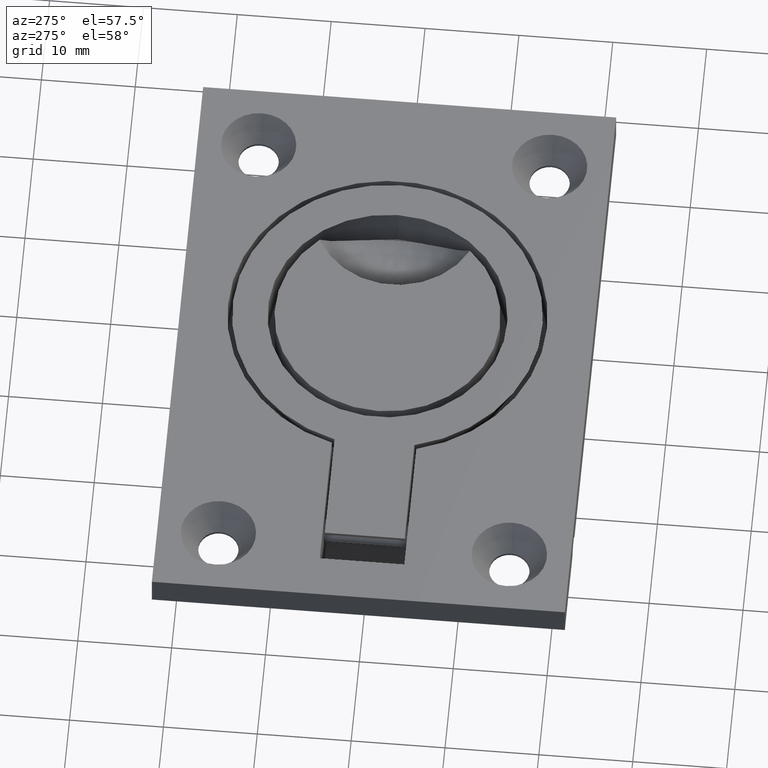
[diagram: clean part render]
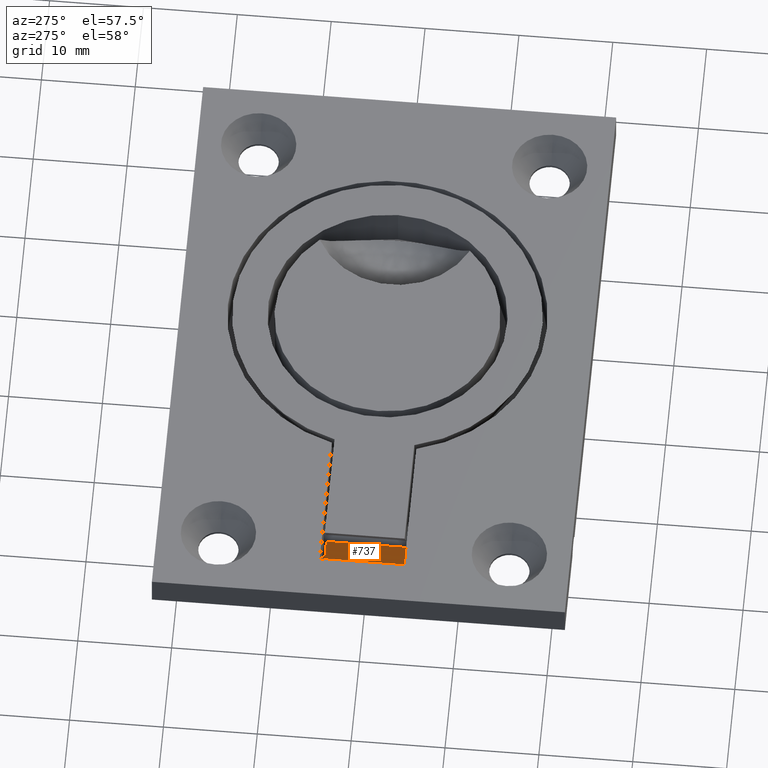
[diagram: same view with one face highlighted and labeled with its STEP entity id]
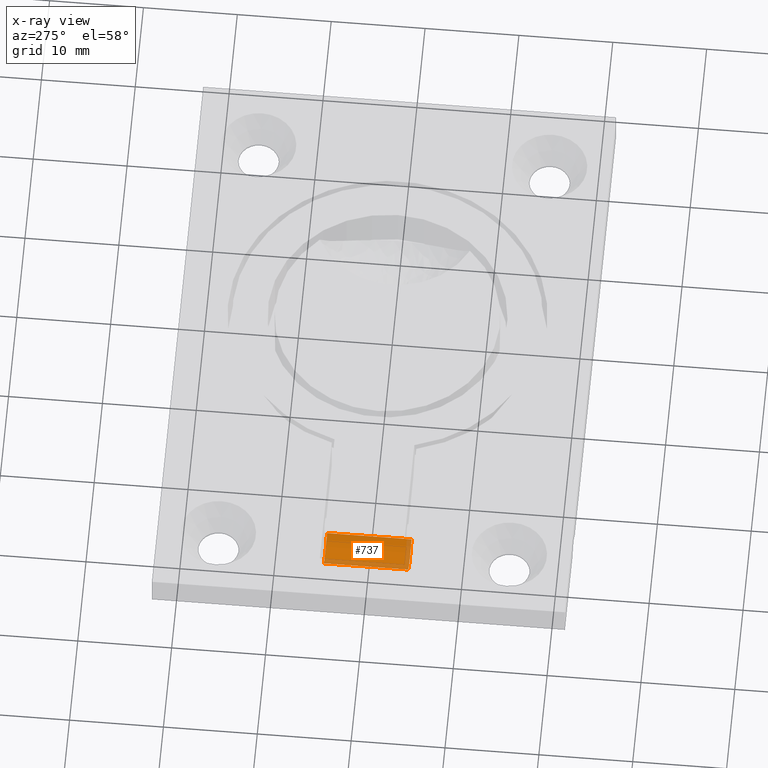
[diagram: x-ray of the same camera — body ghosted, the highlighted face saturated]
A machine part, auxiliary view. The second image highlights one B-rep face of the part: STEP entity #737.
The next image is the same camera in x-ray: the body ghosted, the highlighted face saturated — about 22% of this face is hidden behind the body in this view.
In plain terms, the highlighted cylindrical surface (edge-blend (fillet) strip) has radius 3 mm, axis along (0, 1, 0).
Its self-contained STEP definition (entity closure, byte-faithful):
#108=FACE_OUTER_BOUND('',#166,.T.);
#166=EDGE_LOOP('',(#580,#581,#582,#583));
#230=CIRCLE('',#808,3.);
#233=CIRCLE('',#812,3.);
#265=LINE('',#1255,#315);
#266=LINE('',#1257,#316);
#315=VECTOR('',#967,9.);
#316=VECTOR('',#970,9.);
#379=VERTEX_POINT('',#1236);
#380=VERTEX_POINT('',#1238);
#383=VERTEX_POINT('',#1246);
#384=VERTEX_POINT('',#1248);
#454=EDGE_CURVE('',#380,#379,#230,.T.);
#459=EDGE_CURVE('',#384,#383,#233,.T.);
#463=EDGE_CURVE('',#384,#379,#265,.T.);
#464=EDGE_CURVE('',#383,#380,#266,.T.);
#580=ORIENTED_EDGE('',*,*,#463,.F.);
#581=ORIENTED_EDGE('',*,*,#459,.T.);
#582=ORIENTED_EDGE('',*,*,#464,.T.);
#583=ORIENTED_EDGE('',*,*,#454,.T.);
#710=CYLINDRICAL_SURFACE('',#814,3.);
#737=ADVANCED_FACE('',(#108),#710,.F.);
#808=AXIS2_PLACEMENT_3D('',#1239,#950,#951);
#812=AXIS2_PLACEMENT_3D('',#1249,#960,#961);
#814=AXIS2_PLACEMENT_3D('',#1256,#968,#969);
#950=DIRECTION('center_axis',(0.,1.,0.));
#951=DIRECTION('ref_axis',(0.596914929320992,0.,-0.802304535169604));
#960=DIRECTION('center_axis',(0.,-1.,0.));
#961=DIRECTION('ref_axis',(0.596914929320992,0.,-0.802304535169604));
#967=DIRECTION('',(0.,1.,0.));
#968=DIRECTION('center_axis',(0.,1.,0.));
#969=DIRECTION('ref_axis',(0.596914929320992,0.,-0.802304535169604));
#970=DIRECTION('',(0.,1.,0.));
#1236=CARTESIAN_POINT('',(-22.3360585598945,4.5,-4.40632065082483));
#1238=CARTESIAN_POINT('',(-17.9258773691621,4.5,-5.35085505385357));
#1239=CARTESIAN_POINT('Origin',(-19.7166221571251,4.5,-2.94394144834476));
#1246=CARTESIAN_POINT('',(-17.9258773691621,-4.5,-5.35085505385357));
#1248=CARTESIAN_POINT('',(-22.3360585598945,-4.5,-4.40632065082483));
#1249=CARTESIAN_POINT('Origin',(-19.7166221571251,-4.5,-2.94394144834476));
#1255=CARTESIAN_POINT('',(-22.3360585598945,0.,-4.40632065082483));
#1256=CARTESIAN_POINT('Origin',(-19.7166221571251,0.,-2.94394144834476));
#1257=CARTESIAN_POINT('',(-17.9258773691621,0.,-5.35085505385357));